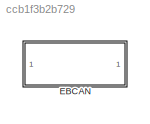
MODEL slx_ccb1f3b2b729
KIND library
CONFIG AbsTol = auto
CONFIG EnableMultiTasking = off
CONFIG FixedStep = auto
CONFIG MaxStep = auto
CONFIG MinStep = auto
CONFIG RelTol = 1e-3
CONFIG SampleTimeConstraint = Unconstrained
CONFIG Solver = VariableStepAuto
CONFIG SolverName = VariableStepAuto
CONFIG StartTime = 0.0
CONFIG StopTime = 10.0
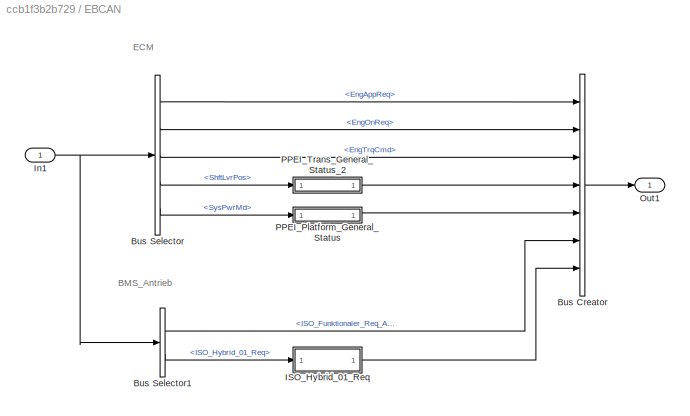
BLOCK [SubSystem] EBCAN
  Ports = [1, 1]
  RequestExecContextInheritance = off
  Variant = off
BLOCK [BusCreator] EBCAN/Bus Creator
  DisplayOption = bar
  InheritFromInputs = on
  Inputs = 7
  Ports = [7, 1]
BLOCK [BusSelector] EBCAN/Bus Selector
  OutputAsBus = off
  OutputSignals = Controls.EngAppReq,Controls.EngOnReq,Controls.EngTrqCmd,Controls.ShftLvrPos,Controls.SysPwrMd
  Ports = [1, 5]
BLOCK [BusSelector] EBCAN/Bus Selector1
  OutputAsBus = off
  OutputSignals = BMS_CAN.ISO_Funktionaler_Req_All,BMS_CAN.ISO_Hybrid_01_Req
  Ports = [1, 2]
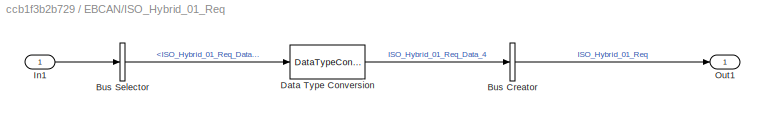
BLOCK [SubSystem] EBCAN/ISO_Hybrid_01_Req
  Ports = [1, 1]
  RequestExecContextInheritance = off
  Variant = off
BLOCK [BusCreator] EBCAN/ISO_Hybrid_01_Req/Bus Creator
  DisplayOption = bar
  InheritFromInputs = on
  Inputs = 1
  Ports = [1, 1]
BLOCK [BusSelector] EBCAN/ISO_Hybrid_01_Req/Bus Selector
  OutputAsBus = off
  OutputSignals = ISO_Hybrid_01_Req_Data_byte_3
  Ports = [1, 1]
BLOCK [DataTypeConversion] EBCAN/ISO_Hybrid_01_Req/Data Type Conversion
  RndMeth = Floor
  SaturateOnIntegerOverflow = off
BLOCK [Inport] EBCAN/ISO_Hybrid_01_Req/In1
  IconDisplay = Port number
BLOCK [Outport] EBCAN/ISO_Hybrid_01_Req/Out1
  IconDisplay = Port number
BLOCK [Inport] EBCAN/In1
  IconDisplay = Port number
BLOCK [Outport] EBCAN/Out1
  IconDisplay = Port number
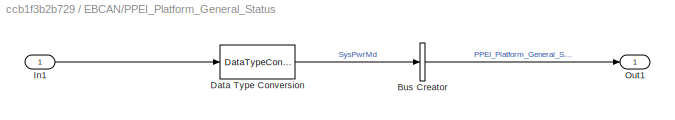
BLOCK [SubSystem] EBCAN/PPEI_Platform_General_Status
  Ports = [1, 1]
  RequestExecContextInheritance = off
  Variant = off
BLOCK [BusCreator] EBCAN/PPEI_Platform_General_Status/Bus Creator
  DisplayOption = bar
  InheritFromInputs = on
  Inputs = 1
  Ports = [1, 1]
BLOCK [DataTypeConversion] EBCAN/PPEI_Platform_General_Status/Data Type Conversion
  RndMeth = Floor
  SaturateOnIntegerOverflow = off
BLOCK [Inport] EBCAN/PPEI_Platform_General_Status/In1
  IconDisplay = Port number
BLOCK [Outport] EBCAN/PPEI_Platform_General_Status/Out1
  IconDisplay = Port number
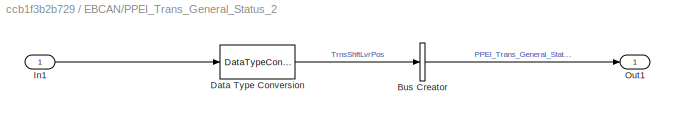
BLOCK [SubSystem] EBCAN/PPEI_Trans_General_Status_2
  Ports = [1, 1]
  RequestExecContextInheritance = off
  Variant = off
BLOCK [BusCreator] EBCAN/PPEI_Trans_General_Status_2/Bus Creator
  DisplayOption = bar
  InheritFromInputs = on
  Inputs = 1
  Ports = [1, 1]
BLOCK [DataTypeConversion] EBCAN/PPEI_Trans_General_Status_2/Data Type Conversion
  RndMeth = Floor
  SaturateOnIntegerOverflow = off
BLOCK [Inport] EBCAN/PPEI_Trans_General_Status_2/In1
  IconDisplay = Port number
BLOCK [Outport] EBCAN/PPEI_Trans_General_Status_2/Out1
  IconDisplay = Port number
ANNOTATION EBCAN: BMS_Antrieb
ANNOTATION EBCAN: ECM
LINE EBCAN/Bus Creator:1 -> EBCAN/Out1:1
LINE EBCAN/Bus Selector1:1 -> EBCAN/Bus Creator:6
LINE EBCAN/Bus Selector1:2 -> EBCAN/ISO_Hybrid_01_Req:1
LINE EBCAN/Bus Selector:1 -> EBCAN/Bus Creator:1
LINE EBCAN/Bus Selector:2 -> EBCAN/Bus Creator:2
LINE EBCAN/Bus Selector:3 -> EBCAN/Bus Creator:3
LINE EBCAN/Bus Selector:4 -> EBCAN/PPEI_Trans_General_Status_2:1
LINE EBCAN/Bus Selector:5 -> EBCAN/PPEI_Platform_General_Status:1
LINE EBCAN/ISO_Hybrid_01_Req/Bus Creator:1 -> EBCAN/ISO_Hybrid_01_Req/Out1:1
LINE EBCAN/ISO_Hybrid_01_Req/Bus Selector:1 -> EBCAN/ISO_Hybrid_01_Req/Data Type Conversion:1
LINE EBCAN/ISO_Hybrid_01_Req/Data Type Conversion:1 -> EBCAN/ISO_Hybrid_01_Req/Bus Creator:1
LINE EBCAN/ISO_Hybrid_01_Req/In1:1 -> EBCAN/ISO_Hybrid_01_Req/Bus Selector:1
LINE EBCAN/ISO_Hybrid_01_Req:1 -> EBCAN/Bus Creator:7
NET EBCAN/In1:1 -> EBCAN/Bus Selector1:1, EBCAN/Bus Selector:1
LINE EBCAN/PPEI_Platform_General_Status/Bus Creator:1 -> EBCAN/PPEI_Platform_General_Status/Out1:1
LINE EBCAN/PPEI_Platform_General_Status/Data Type Conversion:1 -> EBCAN/PPEI_Platform_General_Status/Bus Creator:1
LINE EBCAN/PPEI_Platform_General_Status/In1:1 -> EBCAN/PPEI_Platform_General_Status/Data Type Conversion:1
LINE EBCAN/PPEI_Platform_General_Status:1 -> EBCAN/Bus Creator:5
LINE EBCAN/PPEI_Trans_General_Status_2/Bus Creator:1 -> EBCAN/PPEI_Trans_General_Status_2/Out1:1
LINE EBCAN/PPEI_Trans_General_Status_2/Data Type Conversion:1 -> EBCAN/PPEI_Trans_General_Status_2/Bus Creator:1
LINE EBCAN/PPEI_Trans_General_Status_2/In1:1 -> EBCAN/PPEI_Trans_General_Status_2/Data Type Conversion:1
LINE EBCAN/PPEI_Trans_General_Status_2:1 -> EBCAN/Bus Creator:4
note: NET lines group one-source signal fan-out (src -> all destinations, sorted); 1:1 wires keep LINE
